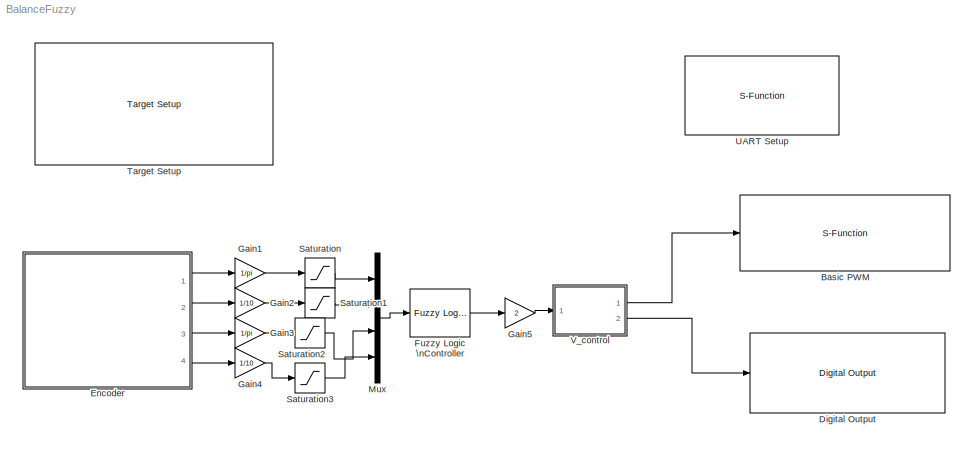
MODEL BalanceFuzzy
KIND model
CONFIG PreLoadFcn = waijung.modelPreload; % Required for working with Waijung Blockset. Do not remove.
BLOCK [S-Function] Basic PWM
  EnableBusSupport = off
  FunctionName = stm32f4_basicpwm
  Parameters = timer,pwmperiod,ch1pin,ch2pin,ch3pin,ch4pin,sampletime,sampletimestr,blockid,apb,portstr,pinstr,pinmat,timarr,timprescale,chmat,polaritystr
  Ports = [1]
  SID = 30
BLOCK [Reference] Digital Output  REF=stm32f4_io_lib/Digital Output
  Ports = [1]
  SID = 31
  SourceBlock = stm32f4_io_lib/Digital Output
  SourceType = stm32f4_digital_output
  bitbandingstr = \n#define DigitalOutput_D12 Peripheral_BB(GPIOD->ODR, 12)  /* Output pin */
  blockid = DigitalOutput
  cinputportlabel = In1, In2
  coutputportlabel = 0
  enablecustomportlabel = off
  pinstr = GPIO_Pin_12
  port = D
  porttype = Push Pull
  porttypestr = PP
  sampletime = -1
  sampletimestr = 0.01
  speed = 100
  use_bitband = on
  use_pin0 = off
  use_pin1 = off
  use_pin10 = off
  use_pin11 = off
  use_pin12 = on
  use_pin13 = off
  use_pin14 = off
  use_pin15 = off
  use_pin2 = off
  use_pin3 = off
  use_pin4 = off
  use_pin5 = off
  use_pin6 = off
  use_pin7 = off
  use_pin8 = off
  use_pin9 = off
  usedpinarray = [0  0  0  0  0  0  0  0  0  0  0  0  1  0  0  0]
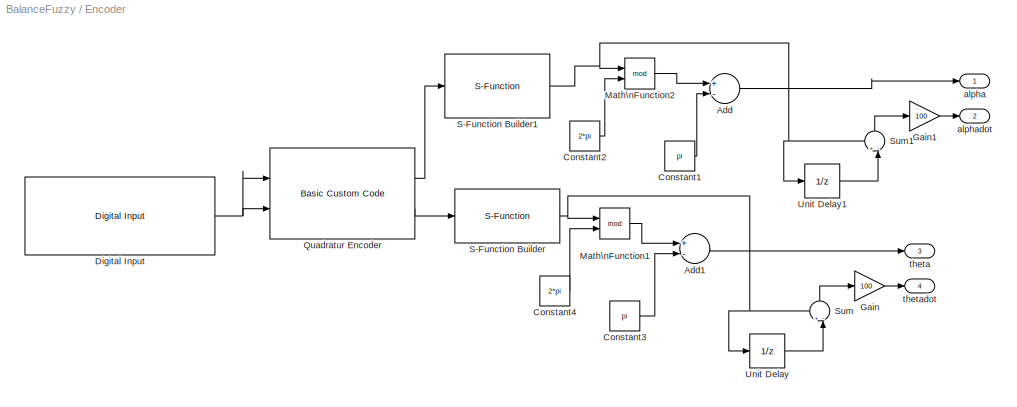
BLOCK [SubSystem] Encoder
  FunctionWithSeparateData = off
  MaskHideContents = off
  MinAlgLoopOccurrences = off
  Opaque = off
  Ports = [0, 4]
  PropExecContextOutsideSubsystem = off
  RTWSystemCode = Auto
  RequestExecContextInheritance = off
  SID = 4
BLOCK [Sum] Encoder/Add
  InputSameDT = off
  Inputs = +-
  OutDataTypeStr = Inherit: Inherit via internal rule
  Ports = [2, 1]
  SID = 5
  SaturateOnIntegerOverflow = off
BLOCK [Sum] Encoder/Add1
  InputSameDT = off
  Inputs = +-
  OutDataTypeStr = Inherit: Inherit via internal rule
  Ports = [2, 1]
  SID = 6
  SaturateOnIntegerOverflow = off
BLOCK [Constant] Encoder/Constant1
  SID = 7
  Value = pi
BLOCK [Constant] Encoder/Constant2
  SID = 8
  Value = 2*pi
BLOCK [Constant] Encoder/Constant3
  SID = 9
  Value = pi
BLOCK [Constant] Encoder/Constant4
  SID = 10
  Value = 2*pi
BLOCK [Reference] Encoder/Digital Input  REF=stm32f4_io_lib/Digital Input
  Ports = [0, 1]
  SID = 11
  SourceBlock = stm32f4_io_lib/Digital Input
  SourceType = stm32f4_digital_input
  bitbandingstr = \n#define EncoderDigitalInput_A0 Peripheral_BB(GPIOA->IDR, 0)  /* Output pin */
  blockid = EncoderDigitalInput
  cinputportlabel = In1, In2
  coutputportlabel = Out1, Out2
  enablecustomportlabel = off
  pinstr = GPIO_Pin_0
  port = A
  porttype = None
  porttypestr = NOPULL
  sampletime = 0.01
  sampletimestr = 0.01
  speed = 100
  use_pin0 = on
  use_pin1 = off
  use_pin10 = off
  use_pin11 = off
  use_pin12 = off
  use_pin13 = off
  use_pin14 = off
  use_pin15 = off
  use_pin2 = off
  use_pin3 = off
  use_pin4 = off
  use_pin5 = off
  use_pin6 = off
  use_pin7 = off
  use_pin8 = off
  use_pin9 = off
  usedpinarray = [1  0  0  0  0  0  0  0  0  0  0  0  0  0  0  0]
BLOCK [Gain] Encoder/Gain
  Gain = 100
  OutDataTypeStr = Inherit: Inherit via internal rule
  ParamDataTypeStr = Inherit: Inherit via internal rule
  SID = 12
  SaturateOnIntegerOverflow = off
BLOCK [Gain] Encoder/Gain1
  Gain = 100
  OutDataTypeStr = Inherit: Inherit via internal rule
  ParamDataTypeStr = Inherit: Inherit via internal rule
  SID = 13
  SaturateOnIntegerOverflow = off
BLOCK [Math] Encoder/Math\nFunction1
  Operator = mod
  Ports = [2, 1]
  SID = 14
BLOCK [Math] Encoder/Math\nFunction2
  Operator = mod
  Ports = [2, 1]
  SID = 15
BLOCK [Reference] Encoder/Quadratur Encoder  REF=waijung_customcode/Basic Custom Code
  Ports = [2, 2]
  SID = 16
  SourceBlock = waijung_customcode/Basic Custom Code
  SourceType = waijung_basic_customcode
  blockid = EncoderQuadraturEncoder
  cinputportlabel = inalpha,intheta
  cinputportlabelstr = [\"inalpha\",\"intheta\"]
  coutputportlabel = alpha, theta
  coutputportlabelstr = [\"alpha\",\" theta\"]
  disablefuncallstr = disable_customio();
  enablecustomportlabel = on
  enablefuncallstr = enable_customio();
  incfiles = {'stm32f4_io_customcode.h'}
  incfilestrarray = [\"stm32f4_io_customcode.h\"]
  incpath = {fullfile(pwd,'customcode')}
  inputportcount = 2
  inputporttype = boolean,boolean
  inputporttypeid = [8  8]
  outputfuncallstr = output_customio(in1,in2,out1,out2);
  outputportcount = 2
  outputporttype = int32,int32
  outputporttypeid = [6  6]
  sampletime = -1
  sampletimestr = 0.01
  srcfiles = {'stm32f4_io_customcode.c'}
  srcpath = {fullfile(pwd,'customcode')}
BLOCK [S-Function] Encoder/S-Function Builder
  CopyFcn = set_param(gcbh,'LinkStatus','none')
  EnableBusSupport = off
  FunctionName = pulsetoangle1
  InitFcn = try, set_param(gcb,'FunctionName','pulsetoangle1'), end
  OpenFcn = sfunctionwizard(gcbh)
  Ports = [1, 1]
  PreSaveFcn = try, set_param(gcb,'FunctionName','pulsetoangle1'), end
  SFunctionModules = pulsetoangle1_wrapper
  SID = 17
  WizardData = DataTag0
BLOCK [S-Function] Encoder/S-Function Builder1
  CopyFcn = set_param(gcbh,'LinkStatus','none')
  EnableBusSupport = off
  FunctionName = pulsetoangle
  InitFcn = try, set_param(gcb,'FunctionName','pulsetoangle'), end
  OpenFcn = sfunctionwizard(gcbh)
  Ports = [1, 1]
  PreSaveFcn = try, set_param(gcb,'FunctionName','pulsetoangle'), end
  SFunctionModules = pulsetoangle_wrapper
  SID = 18
  WizardData = DataTag1
BLOCK [Sum] Encoder/Sum
  IconShape = round
  InputSameDT = off
  Inputs = +-|
  OutDataTypeStr = Inherit: Inherit via internal rule
  Ports = [2, 1]
  SID = 19
  SaturateOnIntegerOverflow = off
BLOCK [Sum] Encoder/Sum1
  IconShape = round
  InputSameDT = off
  Inputs = +-|
  OutDataTypeStr = Inherit: Inherit via internal rule
  Ports = [2, 1]
  SID = 20
  SaturateOnIntegerOverflow = off
BLOCK [UnitDelay] Encoder/Unit Delay
  InputProcessing = Elements as channels (sample based)
  SID = 21
  SampleTime = -1
BLOCK [UnitDelay] Encoder/Unit Delay1
  InputProcessing = Elements as channels (sample based)
  SID = 22
  SampleTime = -1
BLOCK [Outport] Encoder/alpha
  IconDisplay = Port number
  SID = 23
BLOCK [Outport] Encoder/alphadot
  IconDisplay = Port number
  Port = 2
  SID = 24
BLOCK [Outport] Encoder/theta
  IconDisplay = Port number
  Port = 3
  SID = 25
BLOCK [Outport] Encoder/thetadot
  IconDisplay = Port number
  Port = 4
  SID = 26
BLOCK [Reference] Fuzzy Logic \nController  REF=fuzblock/Fuzzy Logic \nController  (lib defined in mdl_858b3b3e7478)
  Ports = [1, 1]
  SID = 28
  SourceBlock = fuzblock/Fuzzy Logic \nController
  SourceType = FIS
  fis = 'CIP2.fis'
BLOCK [Gain] Gain1
  Gain = 1/pi
  OutDataTypeStr = Inherit: Inherit via internal rule
  ParamDataTypeStr = Inherit: Inherit via internal rule
  SID = 33
  SaturateOnIntegerOverflow = off
BLOCK [Gain] Gain2
  Gain = 1/10
  OutDataTypeStr = Inherit: Inherit via internal rule
  ParamDataTypeStr = Inherit: Inherit via internal rule
  SID = 34
  SaturateOnIntegerOverflow = off
BLOCK [Gain] Gain3
  Gain = 1/pi
  OutDataTypeStr = Inherit: Inherit via internal rule
  ParamDataTypeStr = Inherit: Inherit via internal rule
  SID = 35
  SaturateOnIntegerOverflow = off
BLOCK [Gain] Gain4
  Gain = 1/10
  OutDataTypeStr = Inherit: Inherit via internal rule
  ParamDataTypeStr = Inherit: Inherit via internal rule
  SID = 36
  SaturateOnIntegerOverflow = off
BLOCK [Gain] Gain5
  Gain = 2
  OutDataTypeStr = Inherit: Inherit via internal rule
  ParamDataTypeStr = Inherit: Inherit via internal rule
  SID = 43
  SaturateOnIntegerOverflow = off
BLOCK [Mux] Mux
  DisplayOption = bar
  Ports = [4, 1]
  SID = 32
BLOCK [Saturate] Saturation
  InputPortMap = u0
  LowerLimit = -1
  Ports = [1, 1]
  SID = 37
  UpperLimit = 1
BLOCK [Saturate] Saturation1
  InputPortMap = u0
  LowerLimit = -1
  Ports = [1, 1]
  SID = 38
  UpperLimit = 1
BLOCK [Saturate] Saturation2
  InputPortMap = u0
  LowerLimit = -1
  Ports = [1, 1]
  SID = 39
  UpperLimit = 1
BLOCK [Saturate] Saturation3
  InputPortMap = u0
  LowerLimit = -1
  Ports = [1, 1]
  SID = 40
  UpperLimit = 1
BLOCK [Reference] Target Setup  REF=stm32f4_device_config_lib/Target Setup
  Ports = []
  Priority = 100
  SID = 1
  SourceBlock = stm32f4_device_config_lib/Target Setup
  SourceType = stm32f4_target_setup
  assemblercontrolstr = $(patsubst %, -I%, .) -mcpu=cortex-m4 -mthumb -mfloat-abi=hard -mfpu=fpv4-sp-d16 -ffast-math -Wall -Wextra -Ofast -Wa,-amhls=$(<:.s=.lst) -D__STACK_SIZE=$(STACK_SIZE) -D__HEAP_SIZE=$(HEAP_SIZE)
  blockid = TargetSetup
  clockconfig = STM32F4DISCOVERY Default (HSEOSC-8MHz/HCLK-168MHz)
  compiler = GNU ARM
  compilercontrolstr = $(patsubst %, -I%, .) -mcpu=cortex-m4 -mthumb -mfloat-abi=hard -mfpu=fpv4-sp-d16 -ffast-math -Wall -Wextra -Ofast -std=c99
  editctrlstr = off
  enableautocompiledownload = on
  execprofile = None
  flashlength = 1M
  flashorigin = 0x8000000
  fullchiperase = off
  hclk = 168000000
  heapsize = 0x2000
  hseval = 8000000
  lastprofileruart = 3
  linkercontrolstr = -T$(LD_SCRIPT) -g -Wl,-Map=$(MAP),--cref,--no-warn-mismatch -mcpu=cortex-m4 -mthumb -mthumb-interwork
  manualsetsampletime = off
  mcu = STM32F407VG (LQFP100); STM32F4DISCOVERY
  mcustr = STM32F407VG
  profilerbaud = 500000
  profilerinitstr = 0.01,168000000,1680000,500000,0
  profilertxpin = D8
  profileruart = 3
  programmerinterface = ST-Link
  ramlength = 112k
  ramorigin = 0x20000000
  runafterdownload = on
  sampletime = 0.01
  showmemoryconfiguration = off
  stacksize = 0x2000
  system_stm32f4xx_c_path = <path>\\stm32f4_default\\hseosc8mhz
  systickreloadvalue = 1680000
BLOCK [S-Function] UART Setup
  EnableBusSupport = off
  FunctionName = stm32f4_usart
  Parameters = configuration,uartmodule,transfer,baudrate,inputtype,outputtype,confstr,binheaderarray,binterminatorarray,asciiheader,asciiterminator,bindatalength,packetmode,varname,sampletime,sampletimestr,blockid
  Ports = []
  Priority = 1
  SID = 41
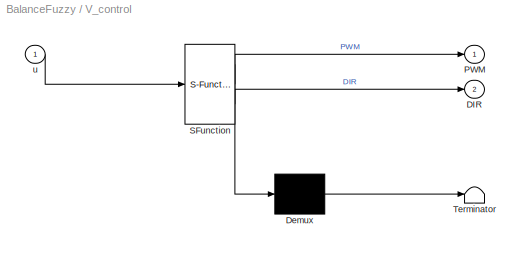
BLOCK [SubSystem] V_control
  ErrorFcn = Stateflow.Translate.translate
  FunctionWithSeparateData = off
  MaskHideContents = off
  MinAlgLoopOccurrences = off
  Opaque = off
  PermitHierarchicalResolution = ExplicitOnly
  Ports = [1, 2]
  PropExecContextOutsideSubsystem = off
  RTWSystemCode = Auto
  RequestExecContextInheritance = off
  SFBlockType = MATLAB Function
  SID = 27
  TreatAsAtomicUnit = on
BLOCK [Demux] V_control/ Demux 
  Outputs = 1
  Ports = [1, 1]
  SID = 27::19
BLOCK [S-Function] V_control/ SFunction 
  EnableBusSupport = on
  FunctionName = sf_sfun
  PortCounts = [1 3]
  Ports = [1, 3]
  SID = 27::18
  Tag = Stateflow S-Function BalanceFuzzy 1
BLOCK [Terminator] V_control/ Terminator 
  SID = 27::20
BLOCK [Outport] V_control/DIR
  IconDisplay = Port number
  Port = 2
  SID = 27::21
BLOCK [Outport] V_control/PWM
  IconDisplay = Port number
  SID = 27::5
BLOCK [Inport] V_control/u
  IconDisplay = Port number
  SID = 27::1
LINE Encoder/Add1:1 -> Encoder/theta:1
LINE Encoder/Add:1 -> Encoder/alpha:1
LINE Encoder/Constant1:1 -> Encoder/Add:2
LINE Encoder/Constant2:1 -> Encoder/Math\nFunction2:2
LINE Encoder/Constant3:1 -> Encoder/Add1:2
LINE Encoder/Constant4:1 -> Encoder/Math\nFunction1:2
NET Encoder/Digital Input:1 -> Encoder/Quadratur Encoder:1, Encoder/Quadratur Encoder:2
LINE Encoder/Gain1:1 -> Encoder/alphadot:1
LINE Encoder/Gain:1 -> Encoder/thetadot:1
LINE Encoder/Math\nFunction1:1 -> Encoder/Add1:1
LINE Encoder/Math\nFunction2:1 -> Encoder/Add:1
LINE Encoder/Quadratur Encoder:1 -> Encoder/S-Function Builder1:1
LINE Encoder/Quadratur Encoder:2 -> Encoder/S-Function Builder:1
NET Encoder/S-Function Builder1:1 -> Encoder/Math\nFunction2:1, Encoder/Sum1:1, Encoder/Unit Delay1:1
NET Encoder/S-Function Builder:1 -> Encoder/Math\nFunction1:1, Encoder/Sum:1, Encoder/Unit Delay:1
LINE Encoder/Sum1:1 -> Encoder/Gain1:1
LINE Encoder/Sum:1 -> Encoder/Gain:1
LINE Encoder/Unit Delay1:1 -> Encoder/Sum1:2
LINE Encoder/Unit Delay:1 -> Encoder/Sum:2
LINE Encoder:1 -> Gain1:1
LINE Encoder:2 -> Gain2:1
LINE Encoder:3 -> Gain3:1
LINE Encoder:4 -> Gain4:1
LINE Fuzzy Logic \nController:1 -> Gain5:1
LINE Gain1:1 -> Saturation:1
LINE Gain2:1 -> Saturation1:1
LINE Gain3:1 -> Saturation2:1
LINE Gain4:1 -> Saturation3:1
LINE Gain5:1 -> V_control:1
LINE Mux:1 -> Fuzzy Logic \nController:1
LINE Saturation1:1 -> Mux:2
LINE Saturation2:1 -> Mux:3
LINE Saturation3:1 -> Mux:4
LINE Saturation:1 -> Mux:1
LINE V_control/ Demux :1 -> V_control/ Terminator :1
LINE V_control/ SFunction :1 -> V_control/ Demux :1
LINE V_control/ SFunction :2 -> V_control/PWM:1
LINE V_control/ SFunction :3 -> V_control/DIR:1
LINE V_control/u:1 -> V_control/ SFunction :1
LINE V_control:1 -> Basic PWM:1
LINE V_control:2 -> Digital Output:1
note: NET lines group one-source signal fan-out (src -> all destinations, sorted); 1:1 wires keep LINE
CHART V_control states=1 transitions=1
  STATE_LABEL 'eML_blk_kernel()'
note: 1 file-system path scrubbed to <path> (not preserved elsewhere — flat text is the only slx artifact)
